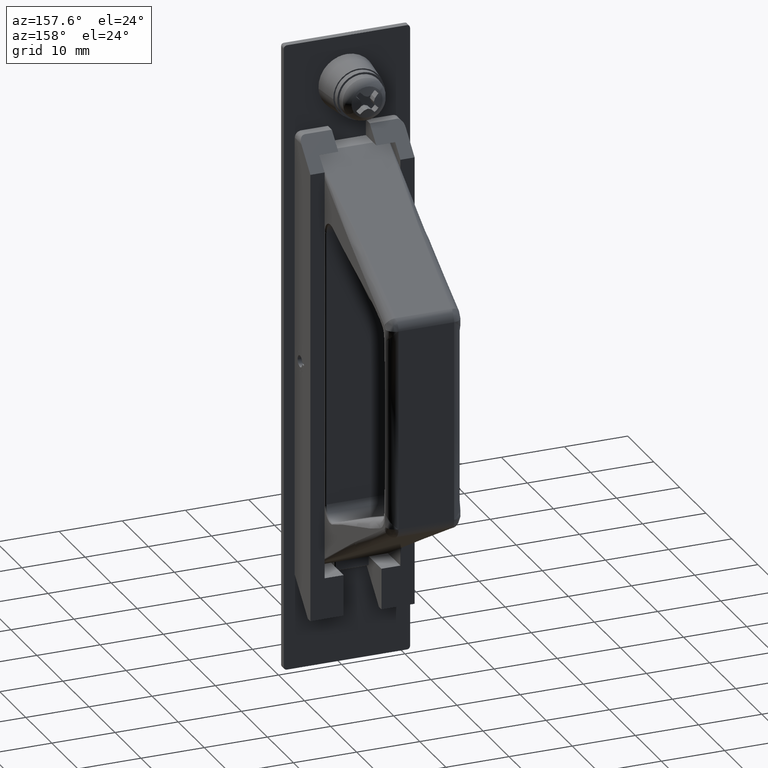
[diagram: clean part render]
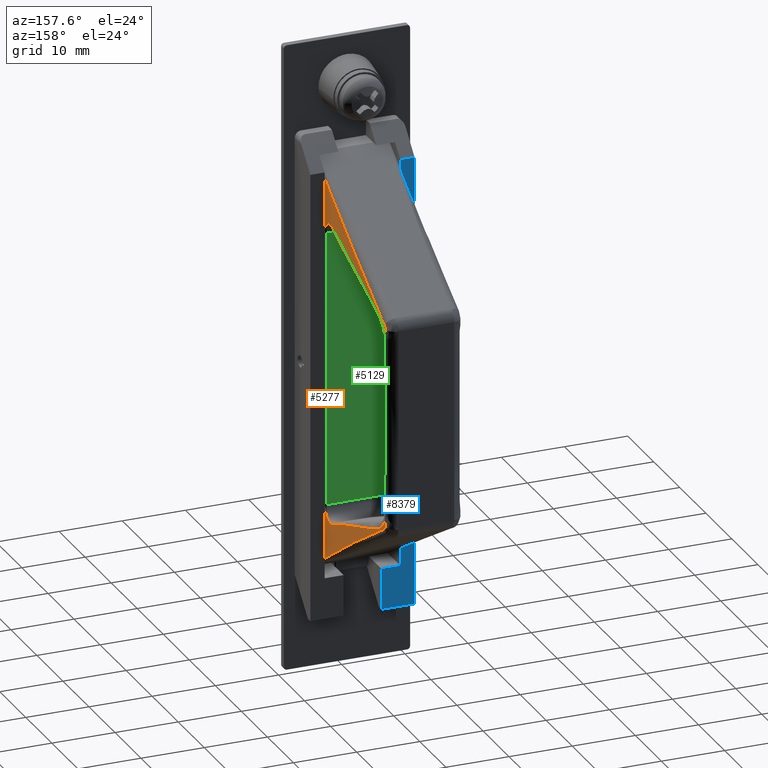
[diagram: same view with three faces highlighted in distinct colors, each labeled with its STEP entity id]
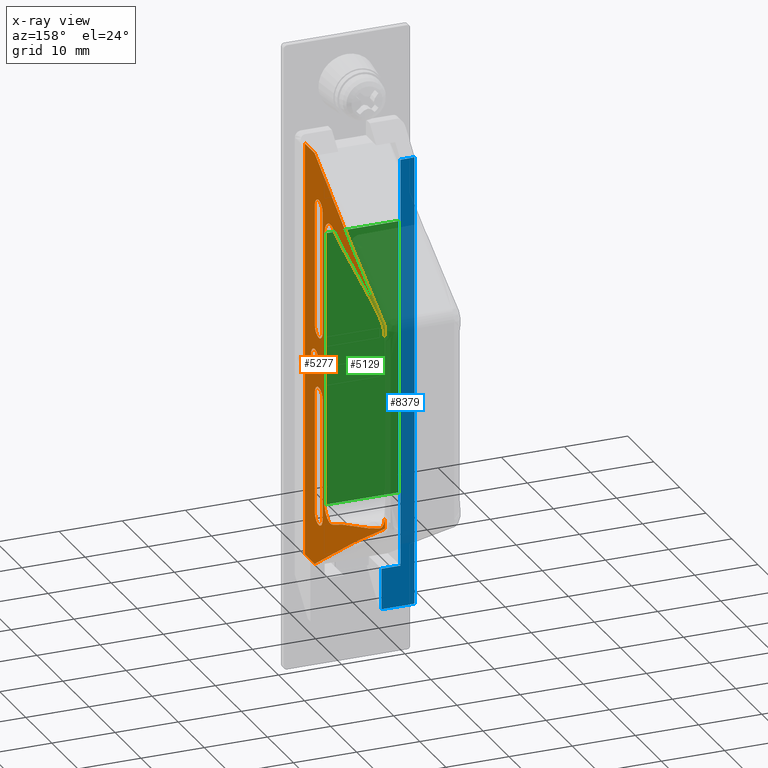
[diagram: x-ray of the same camera — body ghosted, the three highlighted faces saturated]
A machine part, auxiliary view with three faces highlighted in distinct colors.
The next image is the same camera in x-ray (body ghosted, the three faces saturated) — at least one of them is partly hidden behind the body in this view.
Their STEP definitions:

[orange] entity #5277 — the highlighted face is a freeform B-spline surface patch.
#1464=CARTESIAN_POINT('',(4.0,-5.900000000000000,1.500000000000000));
#1465=VERTEX_POINT('',#1464);
#1466=CARTESIAN_POINT('',(5.495376000529436,-5.900000000000000,0.117688644484448));
#1467=VERTEX_POINT('',#1466);
#1468=CARTESIAN_POINT('',(4.0,-5.900000000000000,1.500000000000000));
#1469=CARTESIAN_POINT('',(5.386585735826720,-5.900000000000000,1.500000000000000));
#1470=CARTESIAN_POINT('',(5.495376000529436,-5.900000000000000,0.117688644484447));
#1478=(BOUNDED_CURVE()B_SPLINE_CURVE(2,(#1468,#1469,#1470),.UNSPECIFIED.,.F.,.U.)B_SPLINE_CURVE_WITH_KNOTS((3,3),(0.0,0.236331300428100),.UNSPECIFIED.)CURVE()GEOMETRIC_REPRESENTATION_ITEM()RATIONAL_B_SPLINE_CURVE((1.0,0.723120658844979,0.969723355744691))REPRESENTATION_ITEM(''));
#1479=EDGE_CURVE('',#1465,#1467,#1478,.T.);
#1481=CARTESIAN_POINT('',(2.504623999470564,-5.900000000000000,-0.117688644484448));
#1482=VERTEX_POINT('',#1481);
#1483=CARTESIAN_POINT('',(2.504623999470564,-5.900000000000000,-0.117688644484448));
#1484=CARTESIAN_POINT('',(2.499999999999999,-5.900000000000000,-0.058935161408327));
#1485=CARTESIAN_POINT('',(2.500000000000000,-5.900000000000000,0.0));
#1486=CARTESIAN_POINT('',(2.500000000000000,-5.900000000000000,1.500000000000000));
#1487=CARTESIAN_POINT('',(4.0,-5.900000000000000,1.500000000000000));
#1495=(BOUNDED_CURVE()B_SPLINE_CURVE(2,(#1483,#1484,#1485,#1486,#1487),.UNSPECIFIED.,.F.,.U.)B_SPLINE_CURVE_WITH_KNOTS((3,2,3),(0.736331300428100,0.750000000000000,1.0),.UNSPECIFIED.)CURVE()GEOMETRIC_REPRESENTATION_ITEM()RATIONAL_B_SPLINE_CURVE((0.969723355744691,0.983986122341568,1.0,0.707106781186548,1.0))REPRESENTATION_ITEM(''));
#1496=EDGE_CURVE('',#1482,#1465,#1495,.T.);
#1563=CARTESIAN_POINT('',(4.0,-5.900000000000000,-1.500000000000000));
#1564=VERTEX_POINT('',#1563);
#1565=CARTESIAN_POINT('',(5.495376000529436,-5.900000000000000,0.117688644484447));
#1566=CARTESIAN_POINT('',(5.500000000000001,-5.899999999999999,0.058935161408327));
#1567=CARTESIAN_POINT('',(5.500000000000000,-5.900000000000000,0.0));
#1568=CARTESIAN_POINT('',(5.500000000000001,-5.900000000000000,-1.500000000000000));
#1569=CARTESIAN_POINT('',(4.0,-5.900000000000000,-1.500000000000000));
#1577=(BOUNDED_CURVE()B_SPLINE_CURVE(2,(#1565,#1566,#1567,#1568,#1569),.UNSPECIFIED.,.F.,.U.)B_SPLINE_CURVE_WITH_KNOTS((3,2,3),(0.236331300428100,0.250000000000000,0.500000000000000),.UNSPECIFIED.)CURVE()GEOMETRIC_REPRESENTATION_ITEM()RATIONAL_B_SPLINE_CURVE((0.969723355744691,0.983986122341568,1.0,0.707106781186548,1.0))REPRESENTATION_ITEM(''));
#1578=EDGE_CURVE('',#1467,#1564,#1577,.T.);
#1612=CARTESIAN_POINT('',(4.0,-5.900000000000000,-1.500000000000000));
#1613=CARTESIAN_POINT('',(2.613414264173289,-5.899999999999999,-1.500000000000000));
#1614=CARTESIAN_POINT('',(2.504623999470564,-5.900000000000000,-0.117688644484448));
#1622=(BOUNDED_CURVE()B_SPLINE_CURVE(2,(#1612,#1613,#1614),.UNSPECIFIED.,.F.,.U.)B_SPLINE_CURVE_WITH_KNOTS((3,3),(0.500000000000000,0.736331300428099),.UNSPECIFIED.)CURVE()GEOMETRIC_REPRESENTATION_ITEM()RATIONAL_B_SPLINE_CURVE((1.0,0.723120658844981,0.969723355744688))REPRESENTATION_ITEM(''));
#1623=EDGE_CURVE('',#1564,#1482,#1622,.T.);
#1668=CARTESIAN_POINT('',(0.200000000000000,-5.900000000000000,32.899999999999999));
#1669=VERTEX_POINT('',#1668);
#1689=CARTESIAN_POINT('',(2.070676500998815,-5.900000000000000,32.899999999999991));
#1690=VERTEX_POINT('',#1689);
#1691=CARTESIAN_POINT('',(2.070676500998815,-5.900000000000000,32.899999999999999));
#1692=CARTESIAN_POINT('',(1.447117667332542,-5.900000000000000,32.899999999999999));
#1693=CARTESIAN_POINT('',(0.823558833666269,-5.900000000000000,32.899999999999999));
#1694=CARTESIAN_POINT('',(0.199999999999995,-5.900000000000000,32.899999999999999));
#1695=B_SPLINE_CURVE_WITH_KNOTS('',3,(#1691,#1692,#1693,#1694),.UNSPECIFIED.,.F.,.U.,(4,4),(0.503536614929812,0.597072960394078),.UNSPECIFIED.);
#1696=EDGE_CURVE('',#1690,#1669,#1695,.T.);
#1698=CARTESIAN_POINT('',(3.941353001997640,-5.900000000000000,32.899999999999999));
#1699=VERTEX_POINT('',#1698);
#1700=CARTESIAN_POINT('',(3.941353001997635,-5.900000000000000,32.899999999999999));
#1701=CARTESIAN_POINT('',(3.317794168331362,-5.900000000000000,32.899999999999999));
#1702=CARTESIAN_POINT('',(2.694235334665089,-5.900000000000000,32.899999999999999));
#1703=CARTESIAN_POINT('',(2.070676500998815,-5.900000000000000,32.899999999999999));
#1704=B_SPLINE_CURVE_WITH_KNOTS('',3,(#1700,#1701,#1702,#1703),.UNSPECIFIED.,.F.,.U.,(4,4),(0.410000269465546,0.503536614929812),.UNSPECIFIED.);
#1705=EDGE_CURVE('',#1699,#1690,#1704,.T.);
#1774=CARTESIAN_POINT('',(30.745967129447951,-5.900000000000000,16.268084519263450));
#1775=VERTEX_POINT('',#1774);
#1799=CARTESIAN_POINT('',(30.745967129447951,-5.900000000000000,16.268084519263450));
#1800=CARTESIAN_POINT('',(21.598439002318500,-5.900000000000000,21.435612603156631));
#1801=CARTESIAN_POINT('',(12.769656675279620,-5.900000000000000,27.167382646531529));
#1802=CARTESIAN_POINT('',(3.941353001997631,-5.900000000000000,32.900000000000013));
#1803=B_SPLINE_CURVE_WITH_KNOTS('',3,(#1799,#1800,#1801,#1802),.UNSPECIFIED.,.F.,.U.,(4,4),(0.094385243409929,1.000000000000000),.UNSPECIFIED.);
#1804=EDGE_CURVE('',#1775,#1699,#1803,.T.);
#1849=CARTESIAN_POINT('',(0.200000000000000,-5.900000000000000,-32.899999999999999));
#1850=VERTEX_POINT('',#1849);
#1870=CARTESIAN_POINT('',(0.200000000000000,-5.900000000000000,32.900000000000048));
#1871=CARTESIAN_POINT('',(0.200000000000000,-5.900000000000000,10.966666666666701));
#1872=CARTESIAN_POINT('',(0.200000000000000,-5.900000000000000,-10.966666666666640));
#1873=CARTESIAN_POINT('',(0.200000000000000,-5.900000000000000,-32.899999999999942));
#1874=B_SPLINE_CURVE_WITH_KNOTS('',3,(#1870,#1871,#1872,#1873),.UNSPECIFIED.,.F.,.U.,(4,4),(0.400604229607251,0.599395770392749),.UNSPECIFIED.);
#1875=EDGE_CURVE('',#1669,#1850,#1874,.T.);
#1916=CARTESIAN_POINT('',(31.000039999999998,-5.900000000000000,15.832745746580050));
#1917=VERTEX_POINT('',#1916);
#1943=CARTESIAN_POINT('',(31.000039999999998,-5.900000000000000,15.832745746580050));
#1944=CARTESIAN_POINT('',(30.999124032206051,-5.900000000000000,16.124021692263550));
#1945=CARTESIAN_POINT('',(30.745967129447951,-5.900000000000000,16.268084519263450));
#1946=QUASI_UNIFORM_CURVE('',2,(#1943,#1944,#1945),.UNSPECIFIED.,.F.,.U.);
#1947=EDGE_CURVE('',#1917,#1775,#1946,.T.);
#1992=CARTESIAN_POINT('',(3.941471113760300,-5.900000000000000,-32.899999999999999));
#1993=VERTEX_POINT('',#1992);
#2011=CARTESIAN_POINT('',(2.070735556880153,-5.900000000000000,-32.899999999999999));
#2012=VERTEX_POINT('',#2011);
#2013=CARTESIAN_POINT('',(2.070735556880153,-5.900000000000000,-32.899999999999999));
#2014=CARTESIAN_POINT('',(2.694314075840203,-5.900000000000000,-32.899999999999999));
#2015=CARTESIAN_POINT('',(3.317892594800253,-5.900000000000000,-32.899999999999999));
#2016=CARTESIAN_POINT('',(3.941471113760301,-5.900000000000000,-32.899999999999999));
#2017=B_SPLINE_CURVE_WITH_KNOTS('',3,(#2013,#2014,#2015,#2016),.UNSPECIFIED.,.F.,.U.,(4,4),(0.496463493655394,0.590000026222508),.UNSPECIFIED.);
#2018=EDGE_CURVE('',#2012,#1993,#2017,.T.);
#2020=CARTESIAN_POINT('',(0.200000000000002,-5.900000000000000,-32.899999999999999));
#2021=CARTESIAN_POINT('',(0.823578518960052,-5.900000000000000,-32.899999999999999));
#2022=CARTESIAN_POINT('',(1.447157037920102,-5.900000000000000,-32.899999999999999));
#2023=CARTESIAN_POINT('',(2.070735556880153,-5.900000000000000,-32.899999999999999));
#2024=B_SPLINE_CURVE_WITH_KNOTS('',3,(#2020,#2021,#2022,#2023),.UNSPECIFIED.,.F.,.U.,(4,4),(0.402926961088279,0.496463493655394),.UNSPECIFIED.);
#2025=EDGE_CURVE('',#1850,#2012,#2024,.T.);
#2067=CARTESIAN_POINT('',(31.000039999999998,-5.900000000000000,-15.832765746580851));
#2068=VERTEX_POINT('',#2067);
#2092=CARTESIAN_POINT('',(31.000039999999998,-5.900000000000000,14.774672873290029));
#2093=VERTEX_POINT('',#2092);
#2094=CARTESIAN_POINT('',(31.000039999999998,-5.900000000000000,14.774672873290029));
#2095=CARTESIAN_POINT('',(31.000039999999998,-5.900000000000000,15.127363831053369));
#2096=CARTESIAN_POINT('',(31.000039999999998,-5.900000000000000,15.480054788816711));
#2097=CARTESIAN_POINT('',(31.000039999999998,-5.900000000000000,15.832745746580050));
#2098=B_SPLINE_CURVE_WITH_KNOTS('',3,(#2094,#2095,#2096,#2097),.UNSPECIFIED.,.F.,.U.,(4,4),(0.033414046494039,0.066828092988079),.UNSPECIFIED.);
#2099=EDGE_CURVE('',#2093,#1917,#2098,.T.);
#2101=CARTESIAN_POINT('',(31.000039999999998,-5.900000000000000,13.716600000000000));
#2102=VERTEX_POINT('',#2101);
#2103=CARTESIAN_POINT('',(31.000039999999998,-5.900000000000000,13.716600000000010));
#2104=CARTESIAN_POINT('',(31.000039999999998,-5.900000000000000,14.069290957763350));
#2105=CARTESIAN_POINT('',(31.000039999999998,-5.900000000000000,14.421981915526690));
#2106=CARTESIAN_POINT('',(31.000039999999998,-5.900000000000000,14.774672873290029));
#2107=B_SPLINE_CURVE_WITH_KNOTS('',3,(#2103,#2104,#2105,#2106),.UNSPECIFIED.,.F.,.U.,(4,4),(0.0,0.033414046494039),.UNSPECIFIED.);
#2108=EDGE_CURVE('',#2102,#2093,#2107,.T.);
#2110=CARTESIAN_POINT('',(31.000039999997249,-5.900000000000000,-13.716607198212220));
#2111=VERTEX_POINT('',#2110);
#2119=CARTESIAN_POINT('',(31.000039999999998,-5.900000000000000,-14.774686472396541));
#2120=VERTEX_POINT('',#2119);
#2121=CARTESIAN_POINT('',(31.000039999999998,-5.900000000000000,-14.774686472396541));
#2122=CARTESIAN_POINT('',(31.000039999999998,-5.900000000000000,-14.421993381001769));
#2123=CARTESIAN_POINT('',(31.000039999999998,-5.900000000000000,-14.069300289606989));
#2124=CARTESIAN_POINT('',(31.000039999997249,-5.900000000000000,-13.716607198212220));
#2125=B_SPLINE_CURVE_WITH_KNOTS('',3,(#2121,#2122,#2123,#2124),.UNSPECIFIED.,.F.,.U.,(4,4),(0.966585751365083,1.0),.UNSPECIFIED.);
#2126=EDGE_CURVE('',#2120,#2111,#2125,.T.);
#2128=CARTESIAN_POINT('',(31.000039999999998,-5.900000000000000,-15.832765746580851));
#2129=CARTESIAN_POINT('',(31.000039999999998,-5.900000000000000,-15.480072655186079));
#2130=CARTESIAN_POINT('',(31.000039999999998,-5.900000000000000,-15.127379563791310));
#2131=CARTESIAN_POINT('',(31.000039999999998,-5.900000000000000,-14.774686472396541));
#2132=B_SPLINE_CURVE_WITH_KNOTS('',3,(#2128,#2129,#2130,#2131),.UNSPECIFIED.,.F.,.U.,(4,4),(0.933171502730165,0.966585751365083),.UNSPECIFIED.);
#2133=EDGE_CURVE('',#2068,#2120,#2132,.T.);
#2169=CARTESIAN_POINT('',(30.745967691574499,-5.900000000000000,-16.268104201713001));
#2170=VERTEX_POINT('',#2169);
#2184=CARTESIAN_POINT('',(3.941471113760271,-5.900000000000000,-32.900000000000027));
#2185=CARTESIAN_POINT('',(12.769735360252440,-5.900000000000000,-27.167389344968150));
#2186=CARTESIAN_POINT('',(21.598478264492449,-5.900000000000000,-21.435626004539792));
#2187=CARTESIAN_POINT('',(30.745967691574499,-5.900000000000000,-16.268104201713001));
#2188=B_SPLINE_CURVE_WITH_KNOTS('',3,(#2184,#2185,#2186,#2187),.UNSPECIFIED.,.F.,.U.,(4,4),(0.0,0.905614748322326),.UNSPECIFIED.);
#2189=EDGE_CURVE('',#1993,#2170,#2188,.T.);
#2231=CARTESIAN_POINT('',(30.745967691574499,-5.900000000000000,-16.268104201713001));
#2232=CARTESIAN_POINT('',(30.999124034731999,-5.900000000000000,-16.124041261774099));
#2233=CARTESIAN_POINT('',(31.000039999999998,-5.900000000000000,-15.832765746580851));
#2234=QUASI_UNIFORM_CURVE('',2,(#2231,#2232,#2233),.UNSPECIFIED.,.F.,.U.);
#2235=EDGE_CURVE('',#2170,#2068,#2234,.T.);
#3420=CARTESIAN_POINT('',(10.921667192573461,-5.900000000000000,-23.735074693598602));
#3421=VERTEX_POINT('',#3420);
#3448=CARTESIAN_POINT('',(7.800000000000000,-5.900000000000000,-21.737443000000049));
#3449=VERTEX_POINT('',#3448);
#3463=CARTESIAN_POINT('',(10.921667192573461,-5.900000000000000,-23.735074693598602));
#3464=CARTESIAN_POINT('',(10.418674640531000,-5.900000000000000,-23.966949000552951));
#3465=CARTESIAN_POINT('',(9.848008675504341,-5.900000000000000,-23.927467390667200));
#3466=CARTESIAN_POINT('',(9.279626171571650,-5.900000000000000,-23.888143762377752));
#3467=CARTESIAN_POINT('',(8.814181135450069,-5.900000000000000,-23.590503608959551));
#3468=CARTESIAN_POINT('',(8.349860811344430,-5.900000000000000,-23.293582680006150));
#3469=CARTESIAN_POINT('',(8.075102050077961,-5.900000000000000,-22.792941023125600));
#3470=CARTESIAN_POINT('',(7.800177889774710,-5.900000000000000,-22.291997990422001));
#3471=CARTESIAN_POINT('',(7.800000000000000,-5.900000000000000,-21.737443000000049));
#3472=B_SPLINE_CURVE_WITH_KNOTS('',2,(#3463,#3464,#3465,#3466,#3467,#3468,#3469,#3470,#3471),.UNSPECIFIED.,.F.,.U.,(3,2,2,2,3),(0.0,0.250000000000000,0.500000000000000,0.750000000000000,1.0),.UNSPECIFIED.);
#3473=EDGE_CURVE('',#3421,#3449,#3472,.T.);
#3500=CARTESIAN_POINT('',(7.800000000000000,-5.900000000000000,21.737400000000001));
#3501=VERTEX_POINT('',#3500);
#3515=CARTESIAN_POINT('',(7.800000000000000,-5.900000000000000,-21.737443000000049));
#3516=CARTESIAN_POINT('',(7.800000000000000,-5.900000000000000,-7.245828666666681));
#3517=CARTESIAN_POINT('',(7.800000000000000,-5.900000000000000,7.245785666666670));
#3518=CARTESIAN_POINT('',(7.800000000000000,-5.900000000000000,21.737400000000001));
#3519=QUASI_UNIFORM_CURVE('',3,(#3515,#3516,#3517,#3518),.UNSPECIFIED.,.F.,.U.);
#3520=EDGE_CURVE('',#3449,#3501,#3519,.T.);
#3561=CARTESIAN_POINT('',(28.958330375430450,-5.900000000000000,-16.898338009065348));
#3562=VERTEX_POINT('',#3561);
#3586=CARTESIAN_POINT('',(28.958330375430450,-5.900000000000000,-16.898338009065348));
#3587=CARTESIAN_POINT('',(23.126659200343269,-5.900000000000000,-19.571178550165140));
#3588=CARTESIAN_POINT('',(16.753366690926310,-5.900000000000000,-21.062295948916969));
#3589=CARTESIAN_POINT('',(10.921667192573500,-5.900000000000000,-23.735074693598580));
#3590=B_SPLINE_CURVE_WITH_KNOTS('',3,(#3586,#3587,#3588,#3589),.UNSPECIFIED.,.F.,.U.,(4,4),(0.000026146741132,1.0),.UNSPECIFIED.);
#3591=EDGE_CURVE('',#3562,#3421,#3590,.T.);
#3624=CARTESIAN_POINT('',(10.916631369339640,-5.900000000000000,23.737412768759452));
#3625=VERTEX_POINT('',#3624);
#3639=CARTESIAN_POINT('',(7.800000000000000,-5.900000000000000,21.737400000000001));
#3640=CARTESIAN_POINT('',(7.800156926408583,-5.899999999999999,22.290560709091601));
#3641=CARTESIAN_POINT('',(8.074383315856350,-5.900000000000000,22.791707814638951));
#3642=CARTESIAN_POINT('',(8.347517760237889,-5.900000000000000,23.290859397033149));
#3643=CARTESIAN_POINT('',(8.811812409732191,-5.900000000000000,23.589018116864398));
#3644=CARTESIAN_POINT('',(9.274985121044340,-5.900000000000000,23.886456355310649));
#3645=CARTESIAN_POINT('',(9.843859554179000,-5.900000000000000,23.927225269613750));
#3646=CARTESIAN_POINT('',(10.413069183912141,-5.900000000000000,23.968018206092200));
#3647=CARTESIAN_POINT('',(10.916631369339640,-5.900000000000000,23.737412768759452));
#3648=B_SPLINE_CURVE_WITH_KNOTS('',2,(#3639,#3640,#3641,#3642,#3643,#3644,#3645,#3646,#3647),.UNSPECIFIED.,.F.,.U.,(3,2,2,2,3),(0.000001819774829,0.250000000000000,0.500000000000000,0.750000000000000,1.0),.UNSPECIFIED.);
#3649=EDGE_CURVE('',#3501,#3625,#3648,.T.);
#3721=CARTESIAN_POINT('',(31.000039999997249,-5.900000000000000,-13.716607198212220));
#3722=CARTESIAN_POINT('',(30.999859572969900,-5.900000000000000,-14.732451554808559));
#3723=CARTESIAN_POINT('',(30.440936258747151,-5.900000000000000,-15.603777244706301));
#3724=CARTESIAN_POINT('',(29.882302548393451,-5.900000000000000,-16.474651460699501));
#3725=CARTESIAN_POINT('',(28.958330375430450,-5.900000000000000,-16.898338009065348));
#3726=B_SPLINE_CURVE_WITH_KNOTS('',2,(#3721,#3722,#3723,#3724,#3725),.UNSPECIFIED.,.F.,.U.,(3,2,3),(0.0,0.500000000000000,1.0),.UNSPECIFIED.);
#3727=EDGE_CURVE('',#2111,#3562,#3726,.T.);
#3762=CARTESIAN_POINT('',(28.948933114428151,-5.900000000000000,16.902611261865349));
#3763=VERTEX_POINT('',#3762);
#3777=CARTESIAN_POINT('',(10.916631369339640,-5.900000000000000,23.737412768759452));
#3778=CARTESIAN_POINT('',(16.746847425804479,-5.900000000000000,21.065217875175868));
#3779=CARTESIAN_POINT('',(23.118717057963320,-5.900000000000000,19.574806155448979));
#3780=CARTESIAN_POINT('',(28.948933114428151,-5.900000000000000,16.902611261865349));
#3781=QUASI_UNIFORM_CURVE('',3,(#3777,#3778,#3779,#3780),.UNSPECIFIED.,.F.,.U.);
#3782=EDGE_CURVE('',#3625,#3763,#3781,.T.);
#3881=CARTESIAN_POINT('',(28.948933114428151,-5.900000000000000,16.902611261865349));
#3882=CARTESIAN_POINT('',(29.876000295562971,-5.900000000000000,16.480735542062440));
#3883=CARTESIAN_POINT('',(30.438033437582590,-5.900000000000000,15.608139286805001));
#3884=CARTESIAN_POINT('',(30.999855668877672,-5.900000000000000,14.735870485383771));
#3885=CARTESIAN_POINT('',(31.000039999999998,-5.900000000000000,13.716600000000000));
#3886=B_SPLINE_CURVE_WITH_KNOTS('',2,(#3881,#3882,#3883,#3884,#3885),.UNSPECIFIED.,.F.,.U.,(3,2,3),(0.0,0.500000000000000,1.0),.UNSPECIFIED.);
#3887=EDGE_CURVE('',#3763,#2102,#3886,.T.);
#3929=CARTESIAN_POINT('',(7.0,-5.900000000000000,-5.500000000000000));
#3930=VERTEX_POINT('',#3929);
#3936=CARTESIAN_POINT('',(4.0,-5.900000000000000,-5.500000000000000));
#3937=VERTEX_POINT('',#3936);
#3938=CARTESIAN_POINT('',(4.0,-5.900000000000000,-5.500000000000000));
#3939=CARTESIAN_POINT('',(4.000000000000000,-5.900000000000000,-4.000000000000000));
#3940=CARTESIAN_POINT('',(5.500000000000000,-5.900000000000000,-4.0));
#3941=CARTESIAN_POINT('',(6.999999999999999,-5.900000000000000,-4.000000000000000));
#3942=CARTESIAN_POINT('',(6.999999999999999,-5.900000000000000,-5.500000000000000));
#3950=(BOUNDED_CURVE()B_SPLINE_CURVE(2,(#3938,#3939,#3940,#3941,#3942),.UNSPECIFIED.,.F.,.U.)B_SPLINE_CURVE_WITH_KNOTS((3,2,3),(0.0,0.500000000000000,1.0),.UNSPECIFIED.)CURVE()GEOMETRIC_REPRESENTATION_ITEM()RATIONAL_B_SPLINE_CURVE((1.0,0.707106781186548,1.0,0.707106781186548,1.0))REPRESENTATION_ITEM(''));
#3951=EDGE_CURVE('',#3937,#3930,#3950,.T.);
#3968=CARTESIAN_POINT('',(7.0,-5.900000000000000,-24.500000000000000));
#3969=VERTEX_POINT('',#3968);
#3975=CARTESIAN_POINT('',(7.0,-5.900000000000000,-24.500000000000000));
#3976=CARTESIAN_POINT('',(7.0,-5.900000000000000,-5.500000000000000));
#3977=QUASI_UNIFORM_CURVE('',1,(#3975,#3976),.UNSPECIFIED.,.F.,.U.);
#3978=EDGE_CURVE('',#3969,#3930,#3977,.T.);
#4024=CARTESIAN_POINT('',(4.0,-5.900000000000000,-24.500000000000000));
#4025=VERTEX_POINT('',#4024);
#4031=CARTESIAN_POINT('',(6.999999999999999,-5.900000000000000,-24.500000000000000));
#4032=CARTESIAN_POINT('',(6.999999999999999,-5.900000000000000,-26.000000000000004));
#4033=CARTESIAN_POINT('',(5.500000000000000,-5.900000000000000,-26.0));
#4034=CARTESIAN_POINT('',(4.000000000000000,-5.900000000000000,-26.000000000000004));
#4035=CARTESIAN_POINT('',(4.0,-5.900000000000000,-24.500000000000000));
#4043=(BOUNDED_CURVE()B_SPLINE_CURVE(2,(#4031,#4032,#4033,#4034,#4035),.UNSPECIFIED.,.F.,.U.)B_SPLINE_CURVE_WITH_KNOTS((3,2,3),(0.0,0.500000000000000,1.0),.UNSPECIFIED.)CURVE()GEOMETRIC_REPRESENTATION_ITEM()RATIONAL_B_SPLINE_CURVE((1.0,0.707106781186548,1.0,0.707106781186548,1.0))REPRESENTATION_ITEM(''));
#4044=EDGE_CURVE('',#3969,#4025,#4043,.T.);
#4056=CARTESIAN_POINT('',(4.0,-5.900000000000000,-5.500000000000000));
#4057=CARTESIAN_POINT('',(4.0,-5.900000000000000,-24.500000000000000));
#4058=QUASI_UNIFORM_CURVE('',1,(#4056,#4057),.UNSPECIFIED.,.F.,.U.);
#4059=EDGE_CURVE('',#3937,#4025,#4058,.T.);
#4107=CARTESIAN_POINT('',(4.0,-5.900000000000000,5.500000000000000));
#4108=VERTEX_POINT('',#4107);
#4114=CARTESIAN_POINT('',(7.0,-5.900000000000000,5.500000000000000));
#4115=VERTEX_POINT('',#4114);
#4116=CARTESIAN_POINT('',(6.999999999999999,-5.900000000000000,5.500000000000000));
#4117=CARTESIAN_POINT('',(6.999999999999999,-5.900000000000000,4.000000000000000));
#4118=CARTESIAN_POINT('',(5.500000000000000,-5.900000000000000,4.0));
#4119=CARTESIAN_POINT('',(4.000000000000000,-5.900000000000000,4.000000000000000));
#4120=CARTESIAN_POINT('',(4.0,-5.900000000000000,5.500000000000000));
#4128=(BOUNDED_CURVE()B_SPLINE_CURVE(2,(#4116,#4117,#4118,#4119,#4120),.UNSPECIFIED.,.F.,.U.)B_SPLINE_CURVE_WITH_KNOTS((3,2,3),(0.0,0.500000000000000,1.0),.UNSPECIFIED.)CURVE()GEOMETRIC_REPRESENTATION_ITEM()RATIONAL_B_SPLINE_CURVE((1.0,0.707106781186548,1.0,0.707106781186548,1.0))REPRESENTATION_ITEM(''));
#4129=EDGE_CURVE('',#4115,#4108,#4128,.T.);
#4145=CARTESIAN_POINT('',(7.0,-5.900000000000000,24.500000000000000));
#4146=VERTEX_POINT('',#4145);
#4147=CARTESIAN_POINT('',(7.0,-5.900000000000000,5.500000000000000));
#4148=CARTESIAN_POINT('',(7.0,-5.900000000000000,24.500000000000000));
#4149=QUASI_UNIFORM_CURVE('',1,(#4147,#4148),.UNSPECIFIED.,.F.,.U.);
#4150=EDGE_CURVE('',#4115,#4146,#4149,.T.);
#4203=CARTESIAN_POINT('',(4.0,-5.900000000000000,24.500000000000000));
#4204=VERTEX_POINT('',#4203);
#4205=CARTESIAN_POINT('',(4.0,-5.900000000000000,24.500000000000000));
#4206=CARTESIAN_POINT('',(4.000000000000000,-5.900000000000000,26.000000000000004));
#4207=CARTESIAN_POINT('',(5.500000000000000,-5.900000000000000,26.0));
#4208=CARTESIAN_POINT('',(6.999999999999999,-5.900000000000000,26.000000000000004));
#4209=CARTESIAN_POINT('',(6.999999999999999,-5.900000000000000,24.500000000000000));
#4217=(BOUNDED_CURVE()B_SPLINE_CURVE(2,(#4205,#4206,#4207,#4208,#4209),.UNSPECIFIED.,.F.,.U.)B_SPLINE_CURVE_WITH_KNOTS((3,2,3),(0.0,0.500000000000000,1.0),.UNSPECIFIED.)CURVE()GEOMETRIC_REPRESENTATION_ITEM()RATIONAL_B_SPLINE_CURVE((1.0,0.707106781186548,1.0,0.707106781186548,1.0))REPRESENTATION_ITEM(''));
#4218=EDGE_CURVE('',#4204,#4146,#4217,.T.);
#4234=CARTESIAN_POINT('',(4.0,-5.900000000000000,24.500000000000000));
#4235=CARTESIAN_POINT('',(4.0,-5.900000000000000,5.500000000000000));
#4236=QUASI_UNIFORM_CURVE('',1,(#4234,#4235),.UNSPECIFIED.,.F.,.U.);
#4237=EDGE_CURVE('',#4204,#4108,#4236,.T.);
#5232=CARTESIAN_POINT('',(-1.338461938303548,-5.900000000000000,36.186711725516801));
#5233=CARTESIAN_POINT('',(32.538502764424997,-5.900000000000000,36.186711725516801));
#5234=CARTESIAN_POINT('',(-1.338461938303548,-5.900000000000000,-36.186711725516787));
#5235=CARTESIAN_POINT('',(32.538502764424997,-5.900000000000000,-36.186711725516787));
#5236=B_SPLINE_SURFACE_WITH_KNOTS('',1,1,((#5232,#5234),(#5233,#5235)),.UNSPECIFIED.,.F.,.F.,.U.,(2,2),(2,2),(0.0,33.876964702728543),(0.0,72.373423451033602),.UNSPECIFIED.);
#5237=ORIENTED_EDGE('',*,*,#2235,.T.);
#5238=ORIENTED_EDGE('',*,*,#2133,.T.);
#5239=ORIENTED_EDGE('',*,*,#2126,.T.);
#5240=ORIENTED_EDGE('',*,*,#3727,.T.);
#5241=ORIENTED_EDGE('',*,*,#3591,.T.);
#5242=ORIENTED_EDGE('',*,*,#3473,.T.);
#5243=ORIENTED_EDGE('',*,*,#3520,.T.);
#5244=ORIENTED_EDGE('',*,*,#3649,.T.);
#5245=ORIENTED_EDGE('',*,*,#3782,.T.);
#5246=ORIENTED_EDGE('',*,*,#3887,.T.);
#5247=ORIENTED_EDGE('',*,*,#2108,.T.);
#5248=ORIENTED_EDGE('',*,*,#2099,.T.);
#5249=ORIENTED_EDGE('',*,*,#1947,.T.);
#5250=ORIENTED_EDGE('',*,*,#1804,.T.);
#5251=ORIENTED_EDGE('',*,*,#1705,.T.);
#5252=ORIENTED_EDGE('',*,*,#1696,.T.);
#5253=ORIENTED_EDGE('',*,*,#1875,.T.);
#5254=ORIENTED_EDGE('',*,*,#2025,.T.);
#5255=ORIENTED_EDGE('',*,*,#2018,.T.);
#5256=ORIENTED_EDGE('',*,*,#2189,.T.);
#5257=EDGE_LOOP('',(#5237,#5238,#5239,#5240,#5241,#5242,#5243,#5244,#5245,#5246,#5247,#5248,#5249,#5250,#5251,#5252,#5253,#5254,#5255,#5256));
#5258=FACE_OUTER_BOUND('',#5257,.T.);
#5259=ORIENTED_EDGE('',*,*,#4237,.F.);
#5260=ORIENTED_EDGE('',*,*,#4218,.T.);
#5261=ORIENTED_EDGE('',*,*,#4150,.F.);
#5262=ORIENTED_EDGE('',*,*,#4129,.T.);
#5263=EDGE_LOOP('',(#5259,#5260,#5261,#5262));
#5264=FACE_BOUND('',#5263,.T.);
#5265=ORIENTED_EDGE('',*,*,#4059,.F.);
#5266=ORIENTED_EDGE('',*,*,#3951,.T.);
#5267=ORIENTED_EDGE('',*,*,#3978,.F.);
#5268=ORIENTED_EDGE('',*,*,#4044,.T.);
#5269=EDGE_LOOP('',(#5265,#5266,#5267,#5268));
#5270=FACE_BOUND('',#5269,.T.);
#5271=ORIENTED_EDGE('',*,*,#1623,.T.);
#5272=ORIENTED_EDGE('',*,*,#1496,.T.);
#5273=ORIENTED_EDGE('',*,*,#1479,.T.);
#5274=ORIENTED_EDGE('',*,*,#1578,.T.);
#5275=EDGE_LOOP('',(#5271,#5272,#5273,#5274));
#5276=FACE_BOUND('',#5275,.T.);
#5277=ADVANCED_FACE('',(#5258,#5264,#5270,#5276),#5236,.F.);

[blue] entity #8379 — the highlighted face is a freeform B-spline surface patch.
#7326=CARTESIAN_POINT('',(8.0,6.0,31.500000000000000));
#7327=VERTEX_POINT('',#7326);
#7349=CARTESIAN_POINT('',(8.0,6.0,-33.500000000000000));
#7350=VERTEX_POINT('',#7349);
#7356=CARTESIAN_POINT('',(8.0,6.0,-33.500000000000000));
#7357=CARTESIAN_POINT('',(8.0,6.0,31.500000000000000));
#7358=QUASI_UNIFORM_CURVE('',1,(#7356,#7357),.UNSPECIFIED.,.F.,.U.);
#7359=EDGE_CURVE('',#7350,#7327,#7358,.T.);
#7383=CARTESIAN_POINT('',(8.0,8.250000000000000,31.500000000000000));
#7384=VERTEX_POINT('',#7383);
#7390=CARTESIAN_POINT('',(8.0,8.250000000000000,-40.0));
#7391=VERTEX_POINT('',#7390);
#7392=CARTESIAN_POINT('',(8.0,8.250000000000000,31.500000000000000));
#7393=CARTESIAN_POINT('',(8.0,8.250000000000000,-40.0));
#7394=QUASI_UNIFORM_CURVE('',1,(#7392,#7393),.UNSPECIFIED.,.F.,.U.);
#7395=EDGE_CURVE('',#7384,#7391,#7394,.T.);
#7452=CARTESIAN_POINT('',(8.0,3.0,-40.0));
#7453=VERTEX_POINT('',#7452);
#7454=CARTESIAN_POINT('',(8.0,3.0,-40.0));
#7455=CARTESIAN_POINT('',(8.0,8.250000000000000,-40.0));
#7456=QUASI_UNIFORM_CURVE('',1,(#7454,#7455),.UNSPECIFIED.,.F.,.U.);
#7457=EDGE_CURVE('',#7453,#7391,#7456,.T.);
#7517=CARTESIAN_POINT('',(8.0,3.0,-33.500000000000000));
#7518=VERTEX_POINT('',#7517);
#7524=CARTESIAN_POINT('',(8.0,3.0,-33.500000000000000));
#7525=CARTESIAN_POINT('',(8.0,6.0,-33.500000000000000));
#7526=QUASI_UNIFORM_CURVE('',1,(#7524,#7525),.UNSPECIFIED.,.F.,.U.);
#7527=EDGE_CURVE('',#7518,#7350,#7526,.T.);
#8346=CARTESIAN_POINT('',(8.0,3.0,-33.500000000000000));
#8347=CARTESIAN_POINT('',(8.0,3.0,-40.0));
#8348=QUASI_UNIFORM_CURVE('',1,(#8346,#8347),.UNSPECIFIED.,.F.,.U.);
#8349=EDGE_CURVE('',#7518,#7453,#8348,.T.);
#8362=CARTESIAN_POINT('',(8.0,2.737762510175518,-43.571424861419132));
#8363=CARTESIAN_POINT('',(8.0,2.737762510175518,35.071426779198568));
#8364=CARTESIAN_POINT('',(8.0,8.512237630640453,-43.571424861419132));
#8365=CARTESIAN_POINT('',(8.0,8.512237630640453,35.071426779198568));
#8366=B_SPLINE_SURFACE_WITH_KNOTS('',1,1,((#8362,#8364),(#8363,#8365)),.UNSPECIFIED.,.F.,.F.,.U.,(2,2),(2,2),(0.0,78.642851640617693),(0.0,5.774475120464935),.UNSPECIFIED.);
#8367=ORIENTED_EDGE('',*,*,#7527,.F.);
#8368=ORIENTED_EDGE('',*,*,#8349,.T.);
#8369=ORIENTED_EDGE('',*,*,#7457,.T.);
#8370=ORIENTED_EDGE('',*,*,#7395,.F.);
#8371=CARTESIAN_POINT('',(8.0,6.0,31.500000000000000));
#8372=CARTESIAN_POINT('',(8.0,8.250000000000000,31.500000000000000));
#8373=QUASI_UNIFORM_CURVE('',1,(#8371,#8372),.UNSPECIFIED.,.F.,.U.);
#8374=EDGE_CURVE('',#7327,#7384,#8373,.T.);
#8375=ORIENTED_EDGE('',*,*,#8374,.F.);
#8376=ORIENTED_EDGE('',*,*,#7359,.F.);
#8377=EDGE_LOOP('',(#8367,#8368,#8369,#8370,#8375,#8376));
#8378=FACE_OUTER_BOUND('',#8377,.T.);
#8379=ADVANCED_FACE('',(#8378),#8366,.F.);

[green] entity #5129 — the highlighted face is a freeform B-spline surface patch.
#2937=CARTESIAN_POINT('',(8.0,5.700000000000000,-21.737443000000049));
#2938=VERTEX_POINT('',#2937);
#2990=CARTESIAN_POINT('',(8.0,5.700000000000000,21.737400000000001));
#2991=VERTEX_POINT('',#2990);
#3005=CARTESIAN_POINT('',(8.0,5.700000000000000,-21.737443000000049));
#3006=CARTESIAN_POINT('',(8.0,5.700000000000000,-7.245828666666681));
#3007=CARTESIAN_POINT('',(8.0,5.700000000000000,7.245785666666670));
#3008=CARTESIAN_POINT('',(8.0,5.700000000000000,21.737400000000001));
#3009=QUASI_UNIFORM_CURVE('',3,(#3005,#3006,#3007,#3008),.UNSPECIFIED.,.F.,.U.);
#3010=EDGE_CURVE('',#2938,#2991,#3009,.T.);
#3433=CARTESIAN_POINT('',(8.0,-5.700000000000000,-21.737443000000049));
#3434=VERTEX_POINT('',#3433);
#3498=CARTESIAN_POINT('',(8.0,-5.700000000000000,21.737400000000001));
#3499=VERTEX_POINT('',#3498);
#3523=CARTESIAN_POINT('',(8.0,-5.700000000000000,21.737400000000001));
#3524=CARTESIAN_POINT('',(8.0,-5.700000000000000,7.245785666666670));
#3525=CARTESIAN_POINT('',(8.0,-5.700000000000000,-7.245828666666681));
#3526=CARTESIAN_POINT('',(8.0,-5.700000000000000,-21.737443000000049));
#3527=QUASI_UNIFORM_CURVE('',3,(#3523,#3524,#3525,#3526),.UNSPECIFIED.,.F.,.U.);
#3528=EDGE_CURVE('',#3499,#3434,#3527,.T.);
#4986=CARTESIAN_POINT('',(8.0,5.700000000000000,-21.737443000000049));
#4987=CARTESIAN_POINT('',(8.0,-5.700000000000000,-21.737443000000049));
#4988=QUASI_UNIFORM_CURVE('',1,(#4986,#4987),.UNSPECIFIED.,.F.,.U.);
#4989=EDGE_CURVE('',#2938,#3434,#4988,.T.);
#5107=CARTESIAN_POINT('',(8.0,5.700000000000000,21.737400000000001));
#5108=CARTESIAN_POINT('',(8.0,-5.700000000000000,21.737400000000001));
#5109=QUASI_UNIFORM_CURVE('',1,(#5107,#5108),.UNSPECIFIED.,.F.,.U.);
#5110=EDGE_CURVE('',#2991,#3499,#5109,.T.);
#5118=CARTESIAN_POINT('',(8.0,-6.269429723145696,23.908968323587320));
#5119=CARTESIAN_POINT('',(8.0,-6.269429723145696,-23.909012489673529));
#5120=CARTESIAN_POINT('',(8.0,6.269429417373869,23.908968323587320));
#5121=CARTESIAN_POINT('',(8.0,6.269429417373869,-23.909012489673529));
#5122=B_SPLINE_SURFACE_WITH_KNOTS('',1,1,((#5118,#5120),(#5119,#5121)),.UNSPECIFIED.,.F.,.F.,.U.,(2,2),(2,2),(0.0,47.817980813260853),(0.0,12.538859140519561),.UNSPECIFIED.);
#5123=ORIENTED_EDGE('',*,*,#4989,.F.);
#5124=ORIENTED_EDGE('',*,*,#3010,.T.);
#5125=ORIENTED_EDGE('',*,*,#5110,.T.);
#5126=ORIENTED_EDGE('',*,*,#3528,.T.);
#5127=EDGE_LOOP('',(#5123,#5124,#5125,#5126));
#5128=FACE_OUTER_BOUND('',#5127,.T.);
#5129=ADVANCED_FACE('',(#5128),#5122,.T.);